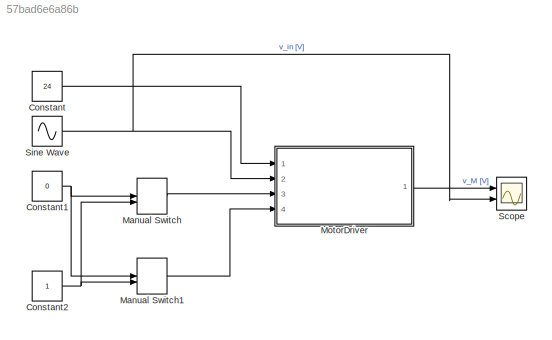
MODEL slx_57bad6e6a86b
KIND model
CONFIG AbsTol = auto
CONFIG EnableMultiTasking = off
CONFIG FixedStep = 0.05
CONFIG MaxStep = auto
CONFIG MinStep = auto
CONFIG RelTol = 1e-3
CONFIG SampleTimeConstraint = Unconstrained
CONFIG SolverName = ode4
CONFIG StartTime = 0.0
CONFIG StopTime = 2
BLOCK [Constant] Constant
  Value = 24
BLOCK [Constant] Constant1
  Value = 0
BLOCK [Constant] Constant2
BLOCK [ManualSwitch] Manual Switch
  CurrentSetting = 0
BLOCK [ManualSwitch] Manual Switch1
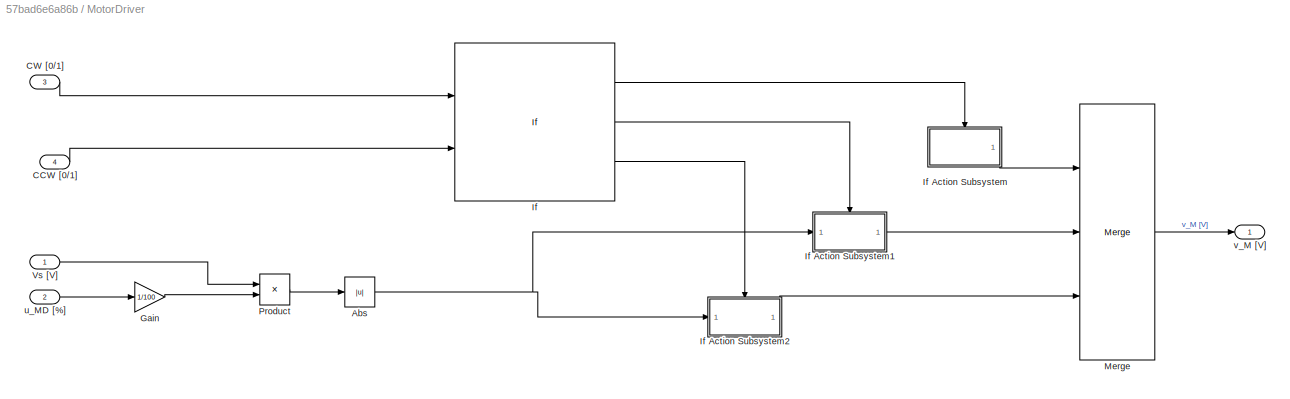
BLOCK [SubSystem] MotorDriver
  Ports = [4, 1]
  RequestExecContextInheritance = off
BLOCK [Abs] MotorDriver/Abs
  SaturateOnIntegerOverflow = off
BLOCK [Inport] MotorDriver/CCW [0//1]
  Port = 4
BLOCK [Inport] MotorDriver/CW [0//1]
  Port = 3
BLOCK [Gain] MotorDriver/Gain
  Gain = 1/100
BLOCK [If] MotorDriver/If
  ElseIfExpressions = u1>u2
  IfExpression = u1==u2
  NumInputs = 2
  Ports = [2, 3]
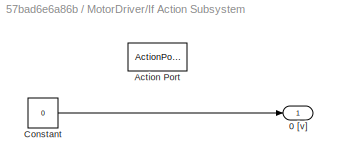
BLOCK [SubSystem] MotorDriver/If Action Subsystem
  Ports = [0, 1, 0, 0, 0, 0, 0, 1]
  RequestExecContextInheritance = off
  TreatAsAtomicUnit = on
BLOCK [Outport] MotorDriver/If Action Subsystem/0 [v]
BLOCK [ActionPort] MotorDriver/If Action Subsystem/Action Port
  ActionPortLabel = if(u1==u2)
BLOCK [Constant] MotorDriver/If Action Subsystem/Constant
  Value = 0
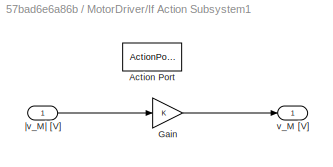
BLOCK [SubSystem] MotorDriver/If Action Subsystem1
  Ports = [1, 1, 0, 0, 0, 0, 0, 1]
  RequestExecContextInheritance = off
  TreatAsAtomicUnit = on
BLOCK [ActionPort] MotorDriver/If Action Subsystem1/Action Port
  ActionPortLabel = elseif(u1>u2)
BLOCK [Gain] MotorDriver/If Action Subsystem1/Gain
BLOCK [Outport] MotorDriver/If Action Subsystem1/v_M [V]
BLOCK [Inport] MotorDriver/If Action Subsystem1/|v_M| [V]
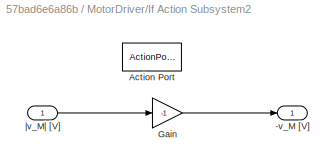
BLOCK [SubSystem] MotorDriver/If Action Subsystem2
  Ports = [1, 1, 0, 0, 0, 0, 0, 1]
  RequestExecContextInheritance = off
  TreatAsAtomicUnit = on
BLOCK [Outport] MotorDriver/If Action Subsystem2/-v_M [V]
BLOCK [ActionPort] MotorDriver/If Action Subsystem2/Action Port
  ActionPortLabel = else
BLOCK [Gain] MotorDriver/If Action Subsystem2/Gain
  Gain = -1
BLOCK [Inport] MotorDriver/If Action Subsystem2/|v_M| [V]
BLOCK [Merge] MotorDriver/Merge
  Inputs = 3
  Ports = [3, 1]
BLOCK [Product] MotorDriver/Product
  Ports = [2, 1]
BLOCK [Inport] MotorDriver/Vs [V]
BLOCK [Inport] MotorDriver/u_MD [%]
  Port = 2
BLOCK [Outport] MotorDriver/v_M [V]
BLOCK [Scope] Scope
  Floating = off
  NumInputPorts = 2
  Ports = [2]
  ScopeSpecificationString = Simulink.scopes.TimeScopeBlockCfg('CurrentConfiguration', extmgr.ConfigurationSet(extmgr.Configuration('Core','General UI',true),extmgr.Configuration('Core','Source UI',true),extmgr.Configuration('Sources','WiredSimulink',true),extmgr.Configuration('Visuals','Time Domain',true,'SerializedDisplays',{struct('MinYLimReal','-3.00000','MaxYLimReal','27.00000','YLabelReal','','MinYLimMag','0','MaxYLimMa...<+1954ch>
BLOCK [Sin] Sine Wave
  Amplitude = 50
  Bias = 50
  Frequency = 2*pi
  Ports = [0, 1]
  SampleTime = 0
NET Constant1:1 -> Manual Switch1:1, Manual Switch:1
NET Constant2:1 -> Manual Switch1:2, Manual Switch:2
LINE Constant:1 -> MotorDriver:1
LINE Manual Switch1:1 -> MotorDriver:4
LINE Manual Switch:1 -> MotorDriver:3
NET MotorDriver/Abs:1 -> MotorDriver/If Action Subsystem1:1, MotorDriver/If Action Subsystem2:1
LINE MotorDriver/CCW [0//1]:1 -> MotorDriver/If:2
LINE MotorDriver/CW [0//1]:1 -> MotorDriver/If:1
LINE MotorDriver/Gain:1 -> MotorDriver/Product:2
LINE MotorDriver/If Action Subsystem/Constant:1 -> MotorDriver/If Action Subsystem/0 [v]:1
LINE MotorDriver/If Action Subsystem1/Gain:1 -> MotorDriver/If Action Subsystem1/v_M [V]:1
LINE MotorDriver/If Action Subsystem1/|v_M| [V]:1 -> MotorDriver/If Action Subsystem1/Gain:1
LINE MotorDriver/If Action Subsystem1:1 -> MotorDriver/Merge:2
LINE MotorDriver/If Action Subsystem2/Gain:1 -> MotorDriver/If Action Subsystem2/-v_M [V]:1
LINE MotorDriver/If Action Subsystem2/|v_M| [V]:1 -> MotorDriver/If Action Subsystem2/Gain:1
LINE MotorDriver/If Action Subsystem2:1 -> MotorDriver/Merge:3
LINE MotorDriver/If Action Subsystem:1 -> MotorDriver/Merge:1
LINE MotorDriver/If:1 -> MotorDriver/If Action Subsystem:ifaction
LINE MotorDriver/If:2 -> MotorDriver/If Action Subsystem1:ifaction
LINE MotorDriver/If:3 -> MotorDriver/If Action Subsystem2:ifaction
LINE MotorDriver/Merge:1 -> MotorDriver/v_M [V]:1
LINE MotorDriver/Product:1 -> MotorDriver/Abs:1
LINE MotorDriver/Vs [V]:1 -> MotorDriver/Product:1
LINE MotorDriver/u_MD [%]:1 -> MotorDriver/Gain:1
LINE MotorDriver:1 -> Scope:1
NET Sine Wave:1 -> MotorDriver:2, Scope:2
note: NET lines group one-source signal fan-out (src -> all destinations, sorted); 1:1 wires keep LINE
